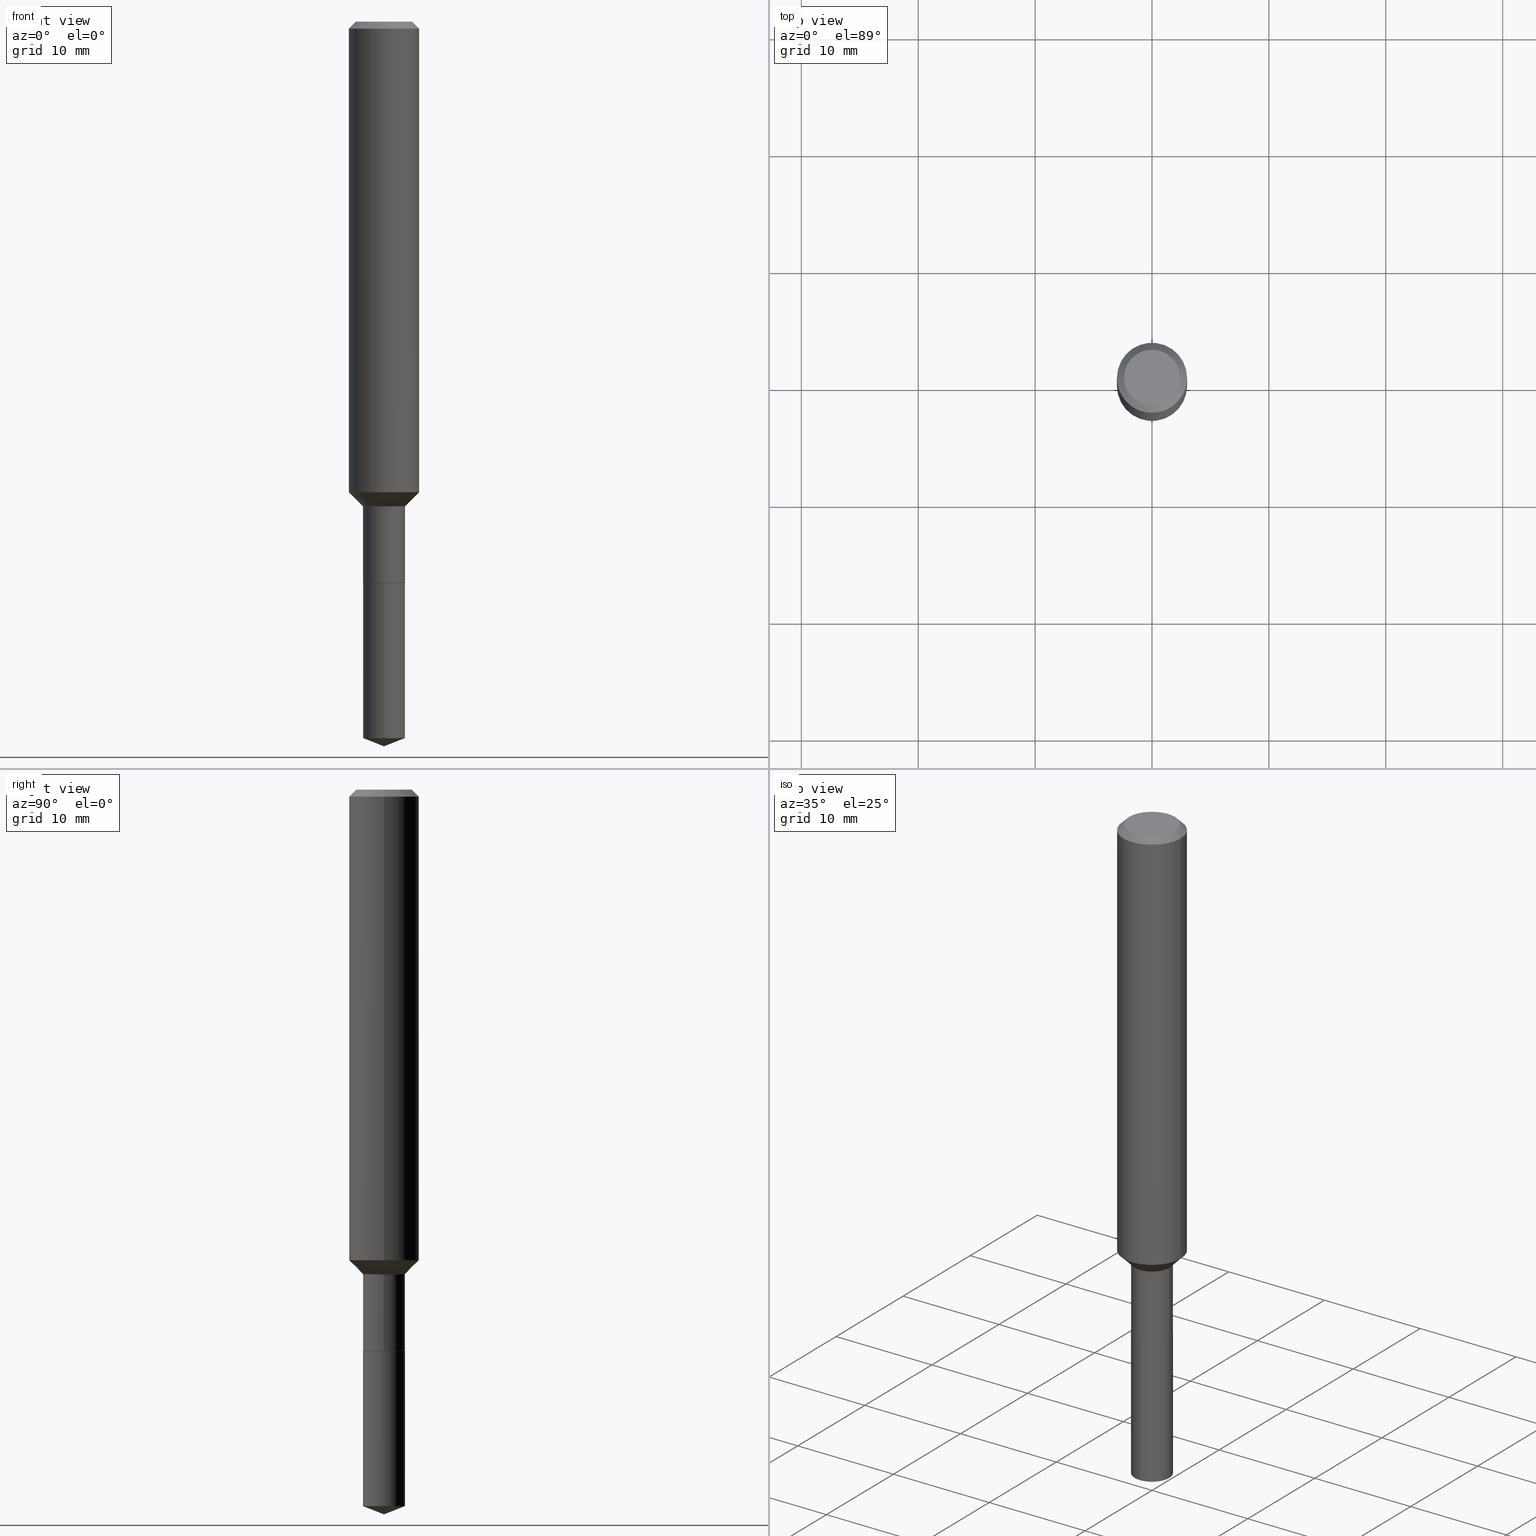
[diagram: canonical four-view strip — front | top / right | iso, engineering-drawing reading convention]
A machine part, canonical four-view strip (front | top / right | iso — engineering-drawing reading convention). The complete STEP part file that produces these views, byte-faithful:
ISO-10303-21;
HEADER;
FILE_DESCRIPTION (( 'STEP AP203' ),
    '1' );
FILE_NAME ('66406.STEP',
    '2024-04-24T22:15:12',
    ( '' ),
    ( '' ),
    'SwSTEP 2.0',
    'SolidWorks 2023',
    '' );
FILE_SCHEMA (( 'CONFIG_CONTROL_DESIGN' ));
ENDSEC;

DATA;
#1 = VERTEX_POINT ( 'NONE', #247 ) ;
#2 = CC_DESIGN_DATE_AND_TIME_ASSIGNMENT ( #76, #382, ( #127 ) ) ;
#3 = CARTESIAN_POINT ( 'NONE',  ( 5.776197320209327532E-31, -8.246878922347559293E-17, -0.02362000000000014088 ) ) ;
#4 = VERTEX_POINT ( 'NONE', #164 ) ;
#5 = CARTESIAN_POINT ( 'NONE',  ( 5.943564290953905470E-29, -8.558989557801686786E-15, -2.440900000000000070 ) ) ;
#6 = ORIENTED_EDGE ( 'NONE', *, *, #57, .T. ) ;
#7 = AXIS2_PLACEMENT_3D ( 'NONE', #369, #305, #172 ) ;
#8 = PERSON_AND_ORGANIZATION ( #216, #340 ) ;
#9 = CONICAL_SURFACE ( 'NONE', #174, 0.1180999999999999966, 0.7853981633974460586 ) ;
#10 = CARTESIAN_POINT ( 'NONE',  ( -0.07084999999999999631, -5.644031665015095667E-15, -1.889200000000000212 ) ) ;
#11 = CARTESIAN_POINT ( 'NONE',  ( 4.621202403048053204E-29, -6.597852286011892490E-15, -1.889700000000000157 ) ) ;
#12 = CARTESIAN_POINT ( 'NONE',  ( 4.621202403048053204E-29, -6.597852286011893278E-15, -1.889700000000000379 ) ) ;
#13 = ORIENTED_EDGE ( 'NONE', *, *, #131, .T. ) ;
#14 = DIRECTION ( 'NONE',  ( 0.7071067811865480168, -2.468850131082262583E-15, 0.7071067811865469066 ) ) ;
#15 = CYLINDRICAL_SURFACE ( 'NONE', #417, 0.07084999999999999631 ) ;
#16 = AXIS2_PLACEMENT_3D ( 'NONE', #438, #63, #409 ) ;
#17 = CONICAL_SURFACE ( 'NONE', #319, 99.94676754583976219, 1.195550537616118847 ) ;
#18 = ORIENTED_EDGE ( 'NONE', *, *, #101, .T. ) ;
#19 = EDGE_CURVE ( 'NONE', #117, #277, #128, .T. ) ;
#20 = DIRECTION ( 'NONE',  ( 2.445468806185136597E-29, -3.491481338843145583E-15, -1.000000000000000000 ) ) ;
#21 = DIRECTION ( 'NONE',  ( -2.445468806185136597E-29, 3.491481338843145583E-15, 1.000000000000000000 ) ) ;
#22 = EDGE_CURVE ( 'NONE', #213, #399, #412, .T. ) ;
#23 = APPLICATION_CONTEXT ( 'configuration controlled 3d designs of mechanical parts and assemblies' ) ;
#24 = CARTESIAN_POINT ( 'NONE',  ( 0.07034999999999999587, -7.089103710387122527E-15, -1.889700000000000379 ) ) ;
#25 = AXIS2_PLACEMENT_3D ( 'NONE', #215, #170, #136 ) ;
#26 = CARTESIAN_POINT ( 'NONE',  ( 0.1180999999999999966, -8.926936027602933910E-16, -0.02362000000000014088 ) ) ;
#27 = DIRECTION ( 'NONE',  ( 1.000000000000000000, -6.982962677686266711E-15, 4.876176775795935232E-29 ) ) ;
#28 = APPROVAL ( #272, 'UNSPECIFIED' ) ;
#29 = CARTESIAN_POINT ( 'NONE',  ( -0.1180999999999999966, 7.422191030112725094E-16, -0.02362000000000014088 ) ) ;
#30 = MECHANICAL_CONTEXT ( 'NONE', #23, 'mechanical' ) ;
#31 = LINE ( 'NONE', #24, #120 ) ;
#32 = CARTESIAN_POINT ( 'NONE',  ( 0.000000000000000000, 0.000000000000000000, 0.000000000000000000 ) ) ;
#33 = ADVANCED_FACE ( 'NONE', ( #203 ), #15, .T. ) ;
#34 = CALENDAR_DATE ( 2024, 24, 4 ) ;
#35 = UNCERTAINTY_MEASURE_WITH_UNIT (LENGTH_MEASURE( 1.000000000000000082E-05 ), #485, 'distance_accuracy_value', 'NONE');
#36 = ORIENTED_EDGE ( 'NONE', *, *, #264, .F. ) ;
#37 = PERSON_AND_ORGANIZATION ( #216, #340 ) ;
#38 = ADVANCED_FACE ( 'NONE', ( #394 ), #327, .T. ) ;
#39 = VERTEX_POINT ( 'NONE', #93 ) ;
#40 = EDGE_CURVE ( 'NONE', #320, #455, #396, .T. ) ;
#41 = CIRCLE ( 'NONE', #435, 0.1180999999999999966 ) ;
#42 = ORIENTED_EDGE ( 'NONE', *, *, #40, .T. ) ;
#43 = CONICAL_SURFACE ( 'NONE', #228, 0.1180999999999999966, 0.7853981633974460586 ) ;
#44 = FACE_OUTER_BOUND ( 'NONE', #271, .T. ) ;
#45 = COORDINATED_UNIVERSAL_TIME_OFFSET ( 5, 0, .BEHIND. ) ;
#46 = CARTESIAN_POINT ( 'NONE',  ( 2.358133508849003952E-46, -3.366789680499277518E-32, -9.642868896486260050E-18 ) ) ;
#47 = ORIENTED_EDGE ( 'NONE', *, *, #106, .T. ) ;
#48 = COORDINATED_UNIVERSAL_TIME_OFFSET ( 5, 0, .BEHIND. ) ;
#49 = FACE_OUTER_BOUND ( 'NONE', #313, .T. ) ;
#50 = DIRECTION ( 'NONE',  ( -2.445468806185136597E-29, 3.491481338843145583E-15, 1.000000000000000000 ) ) ;
#51 = AXIS2_PLACEMENT_3D ( 'NONE', #32, #481, #141 ) ;
#52 = CC_DESIGN_APPROVAL ( #28, ( #127 ) ) ;
#53 = CYLINDRICAL_SURFACE ( 'NONE', #166, 0.07084999999999998244 ) ;
#54 = VERTEX_POINT ( 'NONE', #302 ) ;
#55 = CARTESIAN_POINT ( 'NONE',  ( -0.07084999999999995468, -5.195376312973751895E-15, -1.632200000000000095 ) ) ;
#56 = ORIENTED_EDGE ( 'NONE', *, *, #179, .F. ) ;
#57 = EDGE_CURVE ( 'NONE', #455, #97, #348, .T. ) ;
#58 = EDGE_LOOP ( 'NONE', ( #416, #347, #469, #158 ) ) ;
#59 = AXIS2_PLACEMENT_3D ( 'NONE', #337, #297, #138 ) ;
#60 = ORIENTED_EDGE ( 'NONE', *, *, #109, .T. ) ;
#61 = LINE ( 'NONE', #226, #303 ) ;
#62 = DIRECTION ( 'NONE',  ( -2.445468806185136597E-29, 3.491481338843145583E-15, 1.000000000000000000 ) ) ;
#63 = DIRECTION ( 'NONE',  ( -2.434988852863249163E-29, 3.506489228481988303E-15, 1.000000000000000000 ) ) ;
#64 = EDGE_CURVE ( 'NONE', #1, #367, #202, .T. ) ;
#65 = AXIS2_PLACEMENT_3D ( 'NONE', #356, #83, #242 ) ;
#66 = AXIS2_PLACEMENT_3D ( 'NONE', #225, #182, #448 ) ;
#67 = CARTESIAN_POINT ( 'NONE',  ( 0.1181000000000001077, -8.246878922347488542E-16, 5.758764772215005345E-30 ) ) ;
#68 =( NAMED_UNIT ( * ) SI_UNIT ( $, .STERADIAN. ) SOLID_ANGLE_UNIT ( ) );
#69 = DIRECTION ( 'NONE',  ( -2.434988852863248882E-29, 3.506489228481988303E-15, 1.000000000000000000 ) ) ;
#70 = PERSON_AND_ORGANIZATION ( #216, #340 ) ;
#71 = DIRECTION ( 'NONE',  ( -2.434988852863249163E-29, 3.506489228481988303E-15, 1.000000000000000000 ) ) ;
#72 = PERSON_AND_ORGANIZATION_ROLE ( 'creator' ) ;
#73 = CONICAL_SURFACE ( 'NONE', #65, 0.07034999999999999587, 0.7853981633972689780 ) ;
#74 = DIRECTION ( 'NONE',  ( -1.000000000000000000, 6.982962677686266711E-15, 0.000000000000000000 ) ) ;
#75 = AXIS2_PLACEMENT_3D ( 'NONE', #46, #197, #353 ) ;
#76 = DATE_AND_TIME ( #34, #444 ) ;
#77 = DESIGN_CONTEXT ( 'detailed design', #355, 'design' ) ;
#78 = EDGE_LOOP ( 'NONE', ( #152, #465, #42, #460 ) ) ;
#79 = SHAPE_DEFINITION_REPRESENTATION ( #293, #446 ) ;
#80 = ORIENTED_EDGE ( 'NONE', *, *, #90, .T. ) ;
#81 = AXIS2_PLACEMENT_3D ( 'NONE', #257, #439, #400 ) ;
#82 = APPROVAL_DATE_TIME ( #244, #115 ) ;
#83 = DIRECTION ( 'NONE',  ( -2.445468806185136597E-29, 3.491481338843145583E-15, 1.000000000000000000 ) ) ;
#84 = ORIENTED_EDGE ( 'NONE', *, *, #200, .F. ) ;
#85 = CARTESIAN_POINT ( 'NONE',  ( -0.1181000000000001077, 8.391509709326790846E-16, -5.809262341591049389E-30 ) ) ;
#86 = ORIENTED_EDGE ( 'NONE', *, *, #171, .T. ) ;
#87 = EDGE_CURVE ( 'NONE', #213, #117, #31, .T. ) ;
#88 = CARTESIAN_POINT ( 'NONE',  ( -5.029850966064446794E-30, -1.393598043615739189E-14, -1.889700000000000379 ) ) ;
#89 = DIRECTION ( 'NONE',  ( 1.000000000000000000, -6.982962677686269866E-15, 0.000000000000000000 ) ) ;
#90 = EDGE_CURVE ( 'NONE', #472, #208, #461, .T. ) ;
#91 = AXIS2_PLACEMENT_3D ( 'NONE', #282, #360, #162 ) ;
#92 = DIRECTION ( 'NONE',  ( -6.982962677686267499E-15, -1.000000000000000000, 3.498627837350011717E-15 ) ) ;
#93 = CARTESIAN_POINT ( 'NONE',  ( 0.09447999999999998066, -7.704367267948738690E-16, -1.928573779296752193E-17 ) ) ;
#94 = CC_DESIGN_DATE_AND_TIME_ASSIGNMENT ( #351, #391, ( #326 ) ) ;
#95 = EDGE_LOOP ( 'NONE', ( #195, #420, #241 ) ) ;
#96 = PRODUCT ( '66406', '66406', '', ( #30 ) ) ;
#97 = VERTEX_POINT ( 'NONE', #267 ) ;
#98 = CLOSED_SHELL ( 'NONE', ( #470, #414, #142, #279, #240, #474, #254, #187, #377, #384, #214, #196 ) ) ;
#99 = DIRECTION ( 'NONE',  ( 1.000000000000000000, -6.982962677686269077E-15, 0.000000000000000000 ) ) ;
#100 = CARTESIAN_POINT ( 'NONE',  ( -4.947429057140257124E-16, -0.07085000000000658826, -1.889699999999999713 ) ) ;
#101 = EDGE_CURVE ( 'NONE', #277, #367, #260, .T. ) ;
#102 = CARTESIAN_POINT ( 'NONE',  ( 3.875945784363132517E-29, -5.533823347999443072E-15, -1.584950000000000081 ) ) ;
#103 = CC_DESIGN_APPROVAL ( #115, ( #326 ) ) ;
#104 = LINE ( 'NONE', #107, #386 ) ;
#105 = DIRECTION ( 'NONE',  ( 1.000000000000000000, 0.000000000000000000, 0.000000000000000000 ) ) ;
#106 = EDGE_CURVE ( 'NONE', #97, #455, #476, .T. ) ;
#107 = CARTESIAN_POINT ( 'NONE',  ( 5.983519541380308679E-29, -8.502268739700643296E-15, -2.440900000000000070 ) ) ;
#108 = CALENDAR_DATE ( 2024, 24, 4 ) ;
#109 = EDGE_CURVE ( 'NONE', #208, #472, #211, .T. ) ;
#110 = CARTESIAN_POINT ( 'NONE',  ( -0.07034999999999999587, -6.097985471404663419E-15, -1.889700000000000379 ) ) ;
#111 =( NAMED_UNIT ( * ) PLANE_ANGLE_UNIT ( ) SI_UNIT ( $, .RADIAN. ) );
#112 = LOCAL_TIME ( 18, 15, 12.00000000000000000, #48 ) ;
#113 = VERTEX_POINT ( 'NONE', #219 ) ;
#114 = PERSON_AND_ORGANIZATION ( #216, #340 ) ;
#115 = APPROVAL ( #116, 'UNSPECIFIED' ) ;
#116 = APPROVAL_STATUS ( 'not_yet_approved' ) ;
#117 = VERTEX_POINT ( 'NONE', #447 ) ;
#118 = CALENDAR_DATE ( 2024, 24, 4 ) ;
#119 = DIRECTION ( 'NONE',  ( -0.7071067811865480168, 7.493145998870355738E-15, 0.7071067811865469066 ) ) ;
#120 = VECTOR ( 'NONE', #339, 39.37007874015748854 ) ;
#121 = FACE_OUTER_BOUND ( 'NONE', #237, .T. ) ;
#122 = ORIENTED_EDGE ( 'NONE', *, *, #307, .F. ) ;
#123 = DIRECTION ( 'NONE',  ( -0.7071067811864205632, 7.493145998869895043E-15, 0.7071067811866742492 ) ) ;
#124 = ORIENTED_EDGE ( 'NONE', *, *, #464, .T. ) ;
#125 = DIRECTION ( 'NONE',  ( -2.434988852863249163E-29, 3.506489228481988303E-15, 1.000000000000000000 ) ) ;
#126 = ORIENTED_EDGE ( 'NONE', *, *, #22, .T. ) ;
#127 = PRODUCT_DEFINITION ( 'UNKNOWN', '', #333, #77 ) ;
#128 = CIRCLE ( 'NONE', #261, 0.07084999999999998244 ) ;
#129 =( GEOMETRIC_REPRESENTATION_CONTEXT ( 3 ) GLOBAL_UNCERTAINTY_ASSIGNED_CONTEXT ( ( #35 ) ) GLOBAL_UNIT_ASSIGNED_CONTEXT ( ( #485, #111, #68 ) ) REPRESENTATION_CONTEXT ( 'NONE', 'WORKASPACE' ) );
#130 = ORIENTED_EDGE ( 'NONE', *, *, #422, .T. ) ;
#131 = EDGE_CURVE ( 'NONE', #39, #113, #144, .T. ) ;
#132 = ORIENTED_EDGE ( 'NONE', *, *, #57, .F. ) ;
#133 = FACE_OUTER_BOUND ( 'NONE', #488, .T. ) ;
#134 = DIRECTION ( 'NONE',  ( -2.445468806185136597E-29, 3.491481338843145583E-15, 1.000000000000000000 ) ) ;
#135 = CIRCLE ( 'NONE', #332, 0.07034999999999999587 ) ;
#136 = DIRECTION ( 'NONE',  ( 1.000000000000000000, -6.982962677686267499E-15, 4.875432709231658792E-29 ) ) ;
#137 = EDGE_CURVE ( 'NONE', #54, #113, #41, .T. ) ;
#138 = DIRECTION ( 'NONE',  ( -6.982962677686265133E-15, -1.000000000000000000, 3.855819327684210983E-15 ) ) ;
#139 = DIRECTION ( 'NONE',  ( -6.982962677686266711E-15, -1.000000000000000000, 3.855819327684210983E-15 ) ) ;
#140 = DIRECTION ( 'NONE',  ( 1.000000000000000000, -6.982962677686269077E-15, 0.000000000000000000 ) ) ;
#141 = DIRECTION ( 'NONE',  ( 1.000000000000000000, -6.982962677686266711E-15, 4.876176775795935793E-29 ) ) ;
#142 = ADVANCED_FACE ( 'NONE', ( #436 ), #404, .T. ) ;
#143 = AXIS2_PLACEMENT_3D ( 'NONE', #102, #371, #140 ) ;
#144 = LINE ( 'NONE', #26, #483 ) ;
#145 = CARTESIAN_POINT ( 'NONE',  ( 5.776197320209327532E-31, -8.246878922347559293E-17, -0.02362000000000014088 ) ) ;
#146 = EDGE_LOOP ( 'NONE', ( #151, #18, #456, #84 ) ) ;
#147 = CALENDAR_DATE ( 2024, 24, 4 ) ;
#148 = VECTOR ( 'NONE', #69, 39.37007874015748143 ) ;
#149 = ADVANCED_FACE ( 'NONE', ( #258 ), #190, .T. ) ;
#150 = CIRCLE ( 'NONE', #25, 0.09447999999999998066 ) ;
#151 = ORIENTED_EDGE ( 'NONE', *, *, #19, .T. ) ;
#152 = ORIENTED_EDGE ( 'NONE', *, *, #175, .F. ) ;
#153 = DIRECTION ( 'NONE',  ( -6.497071151882118258E-15, -0.9304175679820243516, 0.3665012267242976907 ) ) ;
#154 = ORIENTED_EDGE ( 'NONE', *, *, #137, .T. ) ;
#155 = CC_DESIGN_PERSON_AND_ORGANIZATION_ASSIGNMENT ( #70, #338, ( #96 ) ) ;
#156 = DIRECTION ( 'NONE',  ( 1.000000000000000000, -6.982962677686266711E-15, 0.000000000000000000 ) ) ;
#157 = CLOSED_SHELL ( 'NONE', ( #38, #335, #149, #33, #419 ) ) ;
#158 = ORIENTED_EDGE ( 'NONE', *, *, #445, .F. ) ;
#159 = LOCAL_TIME ( 18, 15, 12.00000000000000000, #489 ) ;
#160 = DIRECTION ( 'NONE',  ( 1.000000000000000000, -6.982962677686267499E-15, 0.000000000000000000 ) ) ;
#161 = EDGE_LOOP ( 'NONE', ( #124, #275, #132, #359 ) ) ;
#162 = DIRECTION ( 'NONE',  ( 1.000000000000000000, -6.982962677686267499E-15, 0.000000000000000000 ) ) ;
#163 = CARTESIAN_POINT ( 'NONE',  ( 4.621202403048053204E-29, -6.597852286011892490E-15, -1.889700000000000157 ) ) ;
#164 = CARTESIAN_POINT ( 'NONE',  ( -0.09447999999999998066, 7.009847083995354710E-16, -1.928573779297727792E-17 ) ) ;
#165 = EDGE_CURVE ( 'NONE', #472, #113, #440, .T. ) ;
#166 = AXIS2_PLACEMENT_3D ( 'NONE', #486, #278, #352 ) ;
#167 = CIRCLE ( 'NONE', #66, 0.07084999999999998244 ) ;
#168 = ORIENTED_EDGE ( 'NONE', *, *, #249, .T. ) ;
#169 = VERTEX_POINT ( 'NONE', #222 ) ;
#170 = DIRECTION ( 'NONE',  ( -2.445468806185136597E-29, 3.491481338843145583E-15, 1.000000000000000000 ) ) ;
#171 = EDGE_CURVE ( 'NONE', #4, #54, #373, .T. ) ;
#172 = DIRECTION ( 'NONE',  ( 1.000000000000000000, -6.982962677686267499E-15, 4.875432709231658792E-29 ) ) ;
#173 = CARTESIAN_POINT ( 'NONE',  ( 5.895411233071309242E-29, -8.432768093556294128E-15, -2.412991442802681963 ) ) ;
#174 = AXIS2_PLACEMENT_3D ( 'NONE', #253, #20, #329 ) ;
#175 = EDGE_CURVE ( 'NONE', #169, #97, #61, .T. ) ;
#176 = DIRECTION ( 'NONE',  ( -2.445468806185136597E-29, 3.491481338843145583E-15, 1.000000000000000000 ) ) ;
#177 =( LENGTH_UNIT ( ) NAMED_UNIT ( * ) SI_UNIT ( $, .METRE. ) );
#178 = FACE_OUTER_BOUND ( 'NONE', #361, .T. ) ;
#179 = EDGE_CURVE ( 'NONE', #39, #4, #325, .T. ) ;
#180 = CARTESIAN_POINT ( 'NONE',  ( 5.776197320209327532E-31, -8.246878922347559293E-17, -0.02362000000000014088 ) ) ;
#181 = EDGE_CURVE ( 'NONE', #233, #169, #104, .T. ) ;
#182 = DIRECTION ( 'NONE',  ( -2.445468806185136597E-29, 3.491481338843145583E-15, 1.000000000000000000 ) ) ;
#183 = CARTESIAN_POINT ( 'NONE',  ( 0.000000000000000000, 0.000000000000000000, 0.000000000000000000 ) ) ;
#184 = APPROVAL_DATE_TIME ( #268, #28 ) ;
#185 = ORIENTED_EDGE ( 'NONE', *, *, #344, .F. ) ;
#186 = APPROVAL_STATUS ( 'not_yet_approved' ) ;
#187 = ADVANCED_FACE ( 'NONE', ( #178 ), #376, .T. ) ;
#188 = ORIENTED_EDGE ( 'NONE', *, *, #231, .T. ) ;
#189 = SECURITY_CLASSIFICATION_LEVEL ( 'unclassified' ) ;
#190 = CONICAL_SURFACE ( 'NONE', #220, 99.94676754583976219, 1.195550537616118847 ) ;
#191 = AXIS2_PLACEMENT_3D ( 'NONE', #375, #299, #99 ) ;
#192 = LOCAL_TIME ( 18, 15, 12.00000000000000000, #266 ) ;
#193 = ORIENTED_EDGE ( 'NONE', *, *, #165, .F. ) ;
#194 = CARTESIAN_POINT ( 'NONE',  ( 0.07034999999999999587, -7.089103710387122527E-15, -1.889700000000000379 ) ) ;
#195 = ORIENTED_EDGE ( 'NONE', *, *, #181, .F. ) ;
#196 = ADVANCED_FACE ( 'NONE', ( #408 ), #73, .T. ) ;
#197 = DIRECTION ( 'NONE',  ( 2.438088387897960049E-29, -3.491481338843145188E-15, -1.000000000000000000 ) ) ;
#198 = ORIENTED_EDGE ( 'NONE', *, *, #304, .T. ) ;
#199 = MANIFOLD_SOLID_BREP ( 'Body-Move/Copy2[1]', #157 ) ;
#200 = EDGE_CURVE ( 'NONE', #117, #1, #425, .T. ) ;
#201 = LINE ( 'NONE', #463, #452 ) ;
#202 = CIRCLE ( 'NONE', #235, 0.07084999999999995468 ) ;
#203 = FACE_OUTER_BOUND ( 'NONE', #78, .T. ) ;
#204 = PERSON_AND_ORGANIZATION_ROLE ( 'classification_officer' ) ;
#205 = DIRECTION ( 'NONE',  ( -2.445468806185136597E-29, 3.491481338843145583E-15, 1.000000000000000000 ) ) ;
#206 = ORIENTED_EDGE ( 'NONE', *, *, #109, .F. ) ;
#207 = CC_DESIGN_PERSON_AND_ORGANIZATION_ASSIGNMENT ( #424, #204, ( #326 ) ) ;
#208 = VERTEX_POINT ( 'NONE', #285 ) ;
#209 = CARTESIAN_POINT ( 'NONE',  ( -0.07034999999999999587, -6.095336244230551429E-15, -1.889700000000000379 ) ) ;
#210 = EDGE_LOOP ( 'NONE', ( #36, #330, #433 ) ) ;
#211 = CIRCLE ( 'NONE', #191, 0.1181000000000001909 ) ;
#212 = APPROVAL_PERSON_ORGANIZATION ( #8, #115, #314 ) ;
#213 = VERTEX_POINT ( 'NONE', #194 ) ;
#214 = ADVANCED_FACE ( 'NONE', ( #121 ), #239, .F. ) ;
#215 = CARTESIAN_POINT ( 'NONE',  ( 4.716267017698007905E-46, -6.733579360998555036E-32, -1.928573779297252010E-17 ) ) ;
#216 = PERSON ( 'UNSPECIFIED', 'UNSPECIFIED', 'UNSPECIFIED', ('UNSPECIFIED'), ('UNSPECIFIED'), ('UNSPECIFIED') ) ;
#217 = DIRECTION ( 'NONE',  ( -2.434988852863248882E-29, 3.506489228481988303E-15, 1.000000000000000000 ) ) ;
#218 = DIRECTION ( 'NONE',  ( 1.000000000000000000, -6.982962677686267499E-15, 0.000000000000000000 ) ) ;
#219 = CARTESIAN_POINT ( 'NONE',  ( 0.1180999999999999966, -9.071566814582237199E-16, -0.02362000000000014088 ) ) ;
#220 = AXIS2_PLACEMENT_3D ( 'NONE', #294, #71, #479 ) ;
#221 = DIRECTION ( 'NONE',  ( 1.000000000000000000, -6.982962677686269866E-15, 0.000000000000000000 ) ) ;
#222 = CARTESIAN_POINT ( 'NONE',  ( 5.034195282860899229E-16, 0.07084999999999157250, -2.412991442802681963 ) ) ;
#223 = FACE_OUTER_BOUND ( 'NONE', #58, .T. ) ;
#224 = CARTESIAN_POINT ( 'NONE',  ( -0.07084999999999998244, 5.034195282860308569E-16, -3.485065511445599567E-30 ) ) ;
#225 = CARTESIAN_POINT ( 'NONE',  ( 4.619979668644960403E-29, -6.596106545342470986E-15, -1.889200000000000212 ) ) ;
#226 = CARTESIAN_POINT ( 'NONE',  ( 5.034195282860771039E-16, 0.07084999999999339049, -1.889700000000000379 ) ) ;
#227 = CARTESIAN_POINT ( 'NONE',  ( 0.000000000000000000, 0.000000000000000000, 0.000000000000000000 ) ) ;
#228 = AXIS2_PLACEMENT_3D ( 'NONE', #145, #411, #74 ) ;
#229 = DIRECTION ( 'NONE',  ( -2.438088387897960049E-29, 3.491481338843145188E-15, 1.000000000000000000 ) ) ;
#230 = ORIENTED_EDGE ( 'NONE', *, *, #445, .T. ) ;
#231 = EDGE_CURVE ( 'NONE', #399, #213, #135, .T. ) ;
#232 = CYLINDRICAL_SURFACE ( 'NONE', #365, 0.07084999999999998244 ) ;
#233 = VERTEX_POINT ( 'NONE', #5 ) ;
#234 = ORIENTED_EDGE ( 'NONE', *, *, #307, .T. ) ;
#235 = AXIS2_PLACEMENT_3D ( 'NONE', #443, #403, #478 ) ;
#236 = CC_DESIGN_APPROVAL ( #458, ( #333 ) ) ;
#237 = EDGE_LOOP ( 'NONE', ( #251, #317 ) ) ;
#238 = PERSON_AND_ORGANIZATION_ROLE ( 'design_supplier' ) ;
#239 = PLANE ( 'NONE',  #357 ) ;
#240 = ADVANCED_FACE ( 'NONE', ( #392 ), #53, .T. ) ;
#241 = ORIENTED_EDGE ( 'NONE', *, *, #291, .F. ) ;
#242 = DIRECTION ( 'NONE',  ( 1.000000000000000000, -6.982962677686269866E-15, 0.000000000000000000 ) ) ;
#243 = ORIENTED_EDGE ( 'NONE', *, *, #249, .F. ) ;
#244 = DATE_AND_TIME ( #118, #248 ) ;
#245 = DIRECTION ( 'NONE',  ( 1.000000000000000000, -6.982962677686265922E-15, 4.876176775795935793E-29 ) ) ;
#246 = CONICAL_SURFACE ( 'NONE', #91, 0.07084999999999995468, 0.7853981633974490562 ) ;
#247 = CARTESIAN_POINT ( 'NONE',  ( 0.07084999999999995468, -6.193538746973854908E-15, -1.632200000000000095 ) ) ;
#248 = LOCAL_TIME ( 18, 15, 12.00000000000000000, #45 ) ;
#249 = EDGE_CURVE ( 'NONE', #113, #54, #393, .T. ) ;
#250 = LINE ( 'NONE', #55, #387 ) ;
#251 = ORIENTED_EDGE ( 'NONE', *, *, #22, .F. ) ;
#252 = EDGE_LOOP ( 'NONE', ( #122, #188, #383, #328 ) ) ;
#253 = CARTESIAN_POINT ( 'NONE',  ( 5.776197320209327532E-31, -8.246878922347559293E-17, -0.02362000000000014088 ) ) ;
#254 = ADVANCED_FACE ( 'NONE', ( #49 ), #246, .T. ) ;
#255 = CARTESIAN_POINT ( 'NONE',  ( 4.619979668644960403E-29, -6.596106545342470986E-15, -1.889200000000000212 ) ) ;
#256 = VECTOR ( 'NONE', #484, 39.37007874015748143 ) ;
#257 = CARTESIAN_POINT ( 'NONE',  ( 4.621202403048053204E-29, -6.597852286011892490E-15, -1.889700000000000157 ) ) ;
#258 = FACE_OUTER_BOUND ( 'NONE', #95, .T. ) ;
#259 = DIRECTION ( 'NONE',  ( -2.445468806185136877E-29, 3.491481338843145188E-15, 1.000000000000000000 ) ) ;
#260 = LINE ( 'NONE', #224, #428 ) ;
#261 = AXIS2_PLACEMENT_3D ( 'NONE', #255, #21, #467 ) ;
#262 = VECTOR ( 'NONE', #321, 39.37007874015748143 ) ;
#263 = APPROVAL_ROLE ( '' ) ;
#264 = EDGE_CURVE ( 'NONE', #233, #320, #201, .T. ) ;
#265 = DIRECTION ( 'NONE',  ( 6.611014441532064222E-15, 0.9304175679820269051, 0.3665012267242910848 ) ) ;
#266 = COORDINATED_UNIVERSAL_TIME_OFFSET ( 5, 0, .BEHIND. ) ;
#267 = CARTESIAN_POINT ( 'NONE',  ( 5.034195282860899229E-16, 0.07084999999999339049, -1.889700000000000379 ) ) ;
#268 = DATE_AND_TIME ( #108, #192 ) ;
#269 = FACE_OUTER_BOUND ( 'NONE', #286, .T. ) ;
#270 = CC_DESIGN_PERSON_AND_ORGANIZATION_ASSIGNMENT ( #410, #72, ( #127 ) ) ;
#271 = EDGE_LOOP ( 'NONE', ( #130, #292 ) ) ;
#272 = APPROVAL_STATUS ( 'not_yet_approved' ) ;
#273 = VECTOR ( 'NONE', #401, 39.37007874015748143 ) ;
#274 = AXIS2_PLACEMENT_3D ( 'NONE', #407, #306, #105 ) ;
#275 = ORIENTED_EDGE ( 'NONE', *, *, #175, .T. ) ;
#276 = PERSON_AND_ORGANIZATION_ROLE ( 'creator' ) ;
#277 = VERTEX_POINT ( 'NONE', #10 ) ;
#278 = DIRECTION ( 'NONE',  ( -2.445468806185136597E-29, 3.491481338843145583E-15, 1.000000000000000000 ) ) ;
#279 = ADVANCED_FACE ( 'NONE', ( #421 ), #406, .T. ) ;
#280 = AXIS2_PLACEMENT_3D ( 'NONE', #3, #205, #156 ) ;
#281 = EDGE_LOOP ( 'NONE', ( #80, #198, #243, #193 ) ) ;
#282 = CARTESIAN_POINT ( 'NONE',  ( 3.991494185455380396E-29, -5.698795841259782653E-15, -1.632200000000000095 ) ) ;
#283 = ORIENTED_EDGE ( 'NONE', *, *, #441, .F. ) ;
#284 = PERSON_AND_ORGANIZATION ( #216, #340 ) ;
#285 = CARTESIAN_POINT ( 'NONE',  ( -0.1181000000000002048, -4.694672377066764086E-15, -1.584950000000000081 ) ) ;
#286 = EDGE_LOOP ( 'NONE', ( #381, #431, #86, #154 ) ) ;
#287 = CARTESIAN_POINT ( 'NONE',  ( -4.947429057140129920E-16, -0.07085000000000843401, -2.412991442802681519 ) ) ;
#288 = DIRECTION ( 'NONE',  ( -2.434988852863249163E-29, 3.506489228481988303E-15, 1.000000000000000000 ) ) ;
#289 = AXIS2_PLACEMENT_3D ( 'NONE', #402, #62, #218 ) ;
#290 = ORIENTED_EDGE ( 'NONE', *, *, #19, .F. ) ;
#291 = EDGE_CURVE ( 'NONE', #169, #320, #429, .T. ) ;
#292 = ORIENTED_EDGE ( 'NONE', *, *, #179, .T. ) ;
#293 = PRODUCT_DEFINITION_SHAPE ( 'NONE', 'NONE',  #127 ) ;
#294 = CARTESIAN_POINT ( 'NONE',  ( -8.990233460988559297E-28, 1.295201278780987653E-13, 36.92917874015748225 ) ) ;
#295 = VECTOR ( 'NONE', #389, 39.37007874015748143 ) ;
#296 = CIRCLE ( 'NONE', #289, 0.07084999999999995468 ) ;
#297 = DIRECTION ( 'NONE',  ( -2.434988852863249163E-29, 3.506489228481988303E-15, 1.000000000000000000 ) ) ;
#298 = FACE_OUTER_BOUND ( 'NONE', #415, .T. ) ;
#299 = DIRECTION ( 'NONE',  ( -2.445468806185136597E-29, 3.491481338843145583E-15, 1.000000000000000000 ) ) ;
#300 = CC_DESIGN_PERSON_AND_ORGANIZATION_ASSIGNMENT ( #284, #238, ( #333 ) ) ;
#301 = APPLICATION_PROTOCOL_DEFINITION ( 'international standard', 'config_control_design', 1994, #355 ) ;
#302 = CARTESIAN_POINT ( 'NONE',  ( -0.1180999999999999966, -1.968995097678779884E-15, -0.02362000000000014088 ) ) ;
#303 = VECTOR ( 'NONE', #217, 39.37007874015748143 ) ;
#304 = EDGE_CURVE ( 'NONE', #208, #54, #316, .T. ) ;
#305 = DIRECTION ( 'NONE',  ( -2.445468806185136597E-29, 3.491481338843145583E-15, 1.000000000000000000 ) ) ;
#306 = DIRECTION ( 'NONE',  ( 0.000000000000000000, 0.000000000000000000, 1.000000000000000000 ) ) ;
#307 = EDGE_CURVE ( 'NONE', #399, #277, #418, .T. ) ;
#308 = DIRECTION ( 'NONE',  ( -2.445468806185136597E-29, 3.491481338843145583E-15, 1.000000000000000000 ) ) ;
#309 = DATE_AND_TIME ( #147, #159 ) ;
#310 = AXIS2_PLACEMENT_3D ( 'NONE', #183, #176, #336 ) ;
#311 = CONICAL_SURFACE ( 'NONE', #477, 0.07034999999999999587, 0.7853981633972689780 ) ;
#312 = ORIENTED_EDGE ( 'NONE', *, *, #165, .T. ) ;
#313 = EDGE_LOOP ( 'NONE', ( #185, #230, #350, #206 ) ) ;
#314 = APPROVAL_ROLE ( '' ) ;
#315 = DIMENSIONAL_EXPONENTS ( 1.000000000000000000, 0.000000000000000000, 0.000000000000000000, 0.000000000000000000, 0.000000000000000000, 0.000000000000000000, 0.000000000000000000 ) ;
#316 = LINE ( 'NONE', #85, #262 ) ;
#317 = ORIENTED_EDGE ( 'NONE', *, *, #231, .F. ) ;
#318 = DIRECTION ( 'NONE',  ( -2.445468806185136597E-29, 3.491481338843145583E-15, 1.000000000000000000 ) ) ;
#319 = AXIS2_PLACEMENT_3D ( 'NONE', #459, #395, #92 ) ;
#320 = VERTEX_POINT ( 'NONE', #287 ) ;
#321 = DIRECTION ( 'NONE',  ( -2.445468806185136877E-29, 3.491481338843145188E-15, 1.000000000000000000 ) ) ;
#322 = DIRECTION ( 'NONE',  ( -2.434988852863249163E-29, 3.506489228481988303E-15, 1.000000000000000000 ) ) ;
#323 = DIRECTION ( 'NONE',  ( 1.000000000000000000, -6.982962677686269866E-15, 0.000000000000000000 ) ) ;
#324 = ORIENTED_EDGE ( 'NONE', *, *, #137, .F. ) ;
#325 = CIRCLE ( 'NONE', #7, 0.09447999999999998066 ) ;
#326 = SECURITY_CLASSIFICATION ( '', '', #189 ) ;
#327 = CYLINDRICAL_SURFACE ( 'NONE', #364, 0.07084999999999999631 ) ;
#328 = ORIENTED_EDGE ( 'NONE', *, *, #490, .F. ) ;
#329 = DIRECTION ( 'NONE',  ( -1.000000000000000000, 6.982962677686266711E-15, 0.000000000000000000 ) ) ;
#330 = ORIENTED_EDGE ( 'NONE', *, *, #181, .T. ) ;
#331 = DIRECTION ( 'NONE',  ( 1.000000000000000000, -6.982962677686266711E-15, 0.000000000000000000 ) ) ;
#332 = AXIS2_PLACEMENT_3D ( 'NONE', #12, #318, #323 ) ;
#333 = PRODUCT_DEFINITION_FORMATION_WITH_SPECIFIED_SOURCE ( 'ANY', '', #96, .NOT_KNOWN. ) ;
#334 = DIRECTION ( 'NONE',  ( -2.434988852863249163E-29, 3.506489228481988303E-15, 1.000000000000000000 ) ) ;
#335 = ADVANCED_FACE ( 'NONE', ( #427 ), #17, .T. ) ;
#336 = DIRECTION ( 'NONE',  ( 1.000000000000000000, -6.982962677686266711E-15, 4.876176775795935793E-29 ) ) ;
#337 = CARTESIAN_POINT ( 'NONE',  ( 4.621202403048053204E-29, -6.597852286011892490E-15, -1.889700000000000157 ) ) ;
#338 = PERSON_AND_ORGANIZATION_ROLE ( 'design_owner' ) ;
#339 = DIRECTION ( 'NONE',  ( 0.7071067811864205632, -2.468850131080928224E-15, 0.7071067811866742492 ) ) ;
#340 = ORGANIZATION ( 'UNSPECIFIED', 'UNSPECIFIED', '' ) ;
#341 = PERSON_AND_ORGANIZATION ( #216, #340 ) ;
#342 = CARTESIAN_POINT ( 'NONE',  ( -0.07084999999999995468, -5.644031665015095667E-15, -1.632200000000000095 ) ) ;
#343 = LENGTH_MEASURE_WITH_UNIT ( LENGTH_MEASURE( 0.02539999999999999897 ), #177 );
#344 = EDGE_CURVE ( 'NONE', #367, #208, #250, .T. ) ;
#345 = ORIENTED_EDGE ( 'NONE', *, *, #304, .F. ) ;
#346 = APPROVAL_ROLE ( '' ) ;
#347 = ORIENTED_EDGE ( 'NONE', *, *, #490, .T. ) ;
#348 = CIRCLE ( 'NONE', #59, 0.07084999999999999631 ) ;
#349 = AXIS2_PLACEMENT_3D ( 'NONE', #468, #125, #466 ) ;
#350 = ORIENTED_EDGE ( 'NONE', *, *, #441, .T. ) ;
#351 = DATE_AND_TIME ( #457, #112 ) ;
#352 = DIRECTION ( 'NONE',  ( 1.000000000000000000, -6.982962677686266711E-15, 4.876176775795935232E-29 ) ) ;
#353 = DIRECTION ( 'NONE',  ( -1.000000000000000000, 6.982962677686265922E-15, -4.876176775795935793E-29 ) ) ;
#354 = ORIENTED_EDGE ( 'NONE', *, *, #64, .T. ) ;
#355 = APPLICATION_CONTEXT ( 'configuration controlled 3d designs of mechanical parts and assemblies' ) ;
#356 = CARTESIAN_POINT ( 'NONE',  ( 4.621202403048053204E-29, -6.597852286011893278E-15, -1.889700000000000379 ) ) ;
#357 = AXIS2_PLACEMENT_3D ( 'NONE', #88, #229, #245 ) ;
#358 = CIRCLE ( 'NONE', #413, 0.07084999999999999631 ) ;
#359 = ORIENTED_EDGE ( 'NONE', *, *, #40, .F. ) ;
#360 = DIRECTION ( 'NONE',  ( -2.445468806185136597E-29, 3.491481338843145583E-15, 1.000000000000000000 ) ) ;
#361 = EDGE_LOOP ( 'NONE', ( #345, #60, #312, #324 ) ) ;
#362 = CARTESIAN_POINT ( 'NONE',  ( 0.07084999999999995468, -6.193538746973854908E-15, -1.632200000000000095 ) ) ;
#363 = CARTESIAN_POINT ( 'NONE',  ( 4.621202403048053204E-29, -6.597852286011893278E-15, -1.889700000000000379 ) ) ;
#364 = AXIS2_PLACEMENT_3D ( 'NONE', #163, #288, #430 ) ;
#365 = AXIS2_PLACEMENT_3D ( 'NONE', #227, #374, #27 ) ;
#366 = ORIENTED_EDGE ( 'NONE', *, *, #344, .T. ) ;
#367 = VERTEX_POINT ( 'NONE', #342 ) ;
#368 = MANIFOLD_SOLID_BREP ( 'Body-Move/Copy2[2]', #98 ) ;
#369 = CARTESIAN_POINT ( 'NONE',  ( 4.716267017698007905E-46, -6.733579360998555036E-32, -1.928573779297252010E-17 ) ) ;
#370 = CARTESIAN_POINT ( 'NONE',  ( -4.947429057140257124E-16, -0.07085000000000658826, -1.889699999999999713 ) ) ;
#371 = DIRECTION ( 'NONE',  ( -2.445468806185136597E-29, 3.491481338843145583E-15, 1.000000000000000000 ) ) ;
#372 = VECTOR ( 'NONE', #14, 39.37007874015748854 ) ;
#373 = LINE ( 'NONE', #29, #273 ) ;
#374 = DIRECTION ( 'NONE',  ( -2.445468806185136597E-29, 3.491481338843145583E-15, 1.000000000000000000 ) ) ;
#375 = CARTESIAN_POINT ( 'NONE',  ( 3.875945784363132517E-29, -5.533823347999443072E-15, -1.584950000000000081 ) ) ;
#376 = CYLINDRICAL_SURFACE ( 'NONE', #51, 0.1181000000000001077 ) ;
#377 = ADVANCED_FACE ( 'NONE', ( #269 ), #43, .T. ) ;
#378 = VECTOR ( 'NONE', #123, 39.37007874015748854 ) ;
#379 = COORDINATED_UNIVERSAL_TIME_OFFSET ( 5, 0, .BEHIND. ) ;
#380 = CARTESIAN_POINT ( 'NONE',  ( 3.991494185455380396E-29, -5.698795841259782653E-15, -1.632200000000000095 ) ) ;
#381 = ORIENTED_EDGE ( 'NONE', *, *, #131, .F. ) ;
#382 = DATE_TIME_ROLE ( 'creation_date' ) ;
#383 = ORIENTED_EDGE ( 'NONE', *, *, #87, .T. ) ;
#384 = ADVANCED_FACE ( 'NONE', ( #44 ), #388, .F. ) ;
#385 = ORIENTED_EDGE ( 'NONE', *, *, #87, .F. ) ;
#386 = VECTOR ( 'NONE', #265, 39.37007874015748854 ) ;
#387 = VECTOR ( 'NONE', #119, 39.37007874015748854 ) ;
#388 = PLANE ( 'NONE',  #75 ) ;
#389 = DIRECTION ( 'NONE',  ( -2.445468806185136877E-29, 3.491481338843145188E-15, 1.000000000000000000 ) ) ;
#390 = EDGE_LOOP ( 'NONE', ( #56, #13, #168, #473 ) ) ;
#391 = DATE_TIME_ROLE ( 'classification_date' ) ;
#392 = FACE_OUTER_BOUND ( 'NONE', #146, .T. ) ;
#393 = CIRCLE ( 'NONE', #280, 0.1180999999999999966 ) ;
#394 = FACE_OUTER_BOUND ( 'NONE', #161, .T. ) ;
#395 = DIRECTION ( 'NONE',  ( -2.434988852863249163E-29, 3.506489228481988303E-15, 1.000000000000000000 ) ) ;
#396 = LINE ( 'NONE', #100, #148 ) ;
#397 = EDGE_LOOP ( 'NONE', ( #354, #366, #423, #283 ) ) ;
#398 = AXIS2_PLACEMENT_3D ( 'NONE', #380, #308, #160 ) ;
#399 = VERTEX_POINT ( 'NONE', #209 ) ;
#400 = DIRECTION ( 'NONE',  ( 6.982962677686265922E-15, 1.000000000000000000, -3.506489228481988303E-15 ) ) ;
#401 = DIRECTION ( 'NONE',  ( -0.7071067811865459074, 2.468850131082240100E-15, -0.7071067811865491270 ) ) ;
#402 = CARTESIAN_POINT ( 'NONE',  ( 3.991494185455380396E-29, -5.698795841259782653E-15, -1.632200000000000095 ) ) ;
#403 = DIRECTION ( 'NONE',  ( -2.445468806185136597E-29, 3.491481338843145583E-15, 1.000000000000000000 ) ) ;
#404 = CYLINDRICAL_SURFACE ( 'NONE', #310, 0.1181000000000001077 ) ;
#405 = AXIS2_PLACEMENT_3D ( 'NONE', #363, #50, #89 ) ;
#406 = CONICAL_SURFACE ( 'NONE', #398, 0.07084999999999995468, 0.7853981633974490562 ) ;
#407 = CARTESIAN_POINT ( 'NONE',  ( 0.000000000000000000, 0.000000000000000000, 0.000000000000000000 ) ) ;
#408 = FACE_OUTER_BOUND ( 'NONE', #252, .T. ) ;
#409 = DIRECTION ( 'NONE',  ( -6.982962677686265133E-15, -1.000000000000000000, 3.855819327684210983E-15 ) ) ;
#410 = PERSON_AND_ORGANIZATION ( #216, #340 ) ;
#411 = DIRECTION ( 'NONE',  ( 2.445468806185136597E-29, -3.491481338843145583E-15, -1.000000000000000000 ) ) ;
#412 = CIRCLE ( 'NONE', #405, 0.07034999999999999587 ) ;
#413 = AXIS2_PLACEMENT_3D ( 'NONE', #173, #334, #139 ) ;
#414 = ADVANCED_FACE ( 'NONE', ( #432 ), #9, .T. ) ;
#415 = EDGE_LOOP ( 'NONE', ( #126, #234, #290, #385 ) ) ;
#416 = ORIENTED_EDGE ( 'NONE', *, *, #101, .F. ) ;
#417 = AXIS2_PLACEMENT_3D ( 'NONE', #11, #322, #426 ) ;
#418 = LINE ( 'NONE', #110, #378 ) ;
#419 = ADVANCED_FACE ( 'NONE', ( #133 ), #434, .F. ) ;
#420 = ORIENTED_EDGE ( 'NONE', *, *, #264, .T. ) ;
#421 = FACE_OUTER_BOUND ( 'NONE', #397, .T. ) ;
#422 = EDGE_CURVE ( 'NONE', #4, #39, #150, .T. ) ;
#423 = ORIENTED_EDGE ( 'NONE', *, *, #90, .F. ) ;
#424 = PERSON_AND_ORGANIZATION ( #216, #340 ) ;
#425 = LINE ( 'NONE', #449, #295 ) ;
#426 = DIRECTION ( 'NONE',  ( -6.982962677686265133E-15, -1.000000000000000000, 3.855819327684210983E-15 ) ) ;
#427 = FACE_OUTER_BOUND ( 'NONE', #210, .T. ) ;
#428 = VECTOR ( 'NONE', #259, 39.37007874015748143 ) ;
#429 = CIRCLE ( 'NONE', #349, 0.07084999999999999631 ) ;
#430 = DIRECTION ( 'NONE',  ( -6.982962677686265133E-15, -1.000000000000000000, 3.855819327684210983E-15 ) ) ;
#431 = ORIENTED_EDGE ( 'NONE', *, *, #422, .F. ) ;
#432 = FACE_OUTER_BOUND ( 'NONE', #390, .T. ) ;
#433 = ORIENTED_EDGE ( 'NONE', *, *, #464, .F. ) ;
#434 = PLANE ( 'NONE',  #81 ) ;
#435 = AXIS2_PLACEMENT_3D ( 'NONE', #180, #134, #331 ) ;
#436 = FACE_OUTER_BOUND ( 'NONE', #281, .T. ) ;
#437 = LINE ( 'NONE', #362, #372 ) ;
#438 = CARTESIAN_POINT ( 'NONE',  ( 4.621202403048053204E-29, -6.597852286011892490E-15, -1.889700000000000157 ) ) ;
#439 = DIRECTION ( 'NONE',  ( 2.434988852863248882E-29, -3.506489228481988303E-15, -1.000000000000000000 ) ) ;
#440 = LINE ( 'NONE', #67, #256 ) ;
#441 = EDGE_CURVE ( 'NONE', #1, #472, #437, .T. ) ;
#442 = CARTESIAN_POINT ( 'NONE',  ( 4.621202403048053204E-29, -6.597852286011893278E-15, -1.889700000000000379 ) ) ;
#443 = CARTESIAN_POINT ( 'NONE',  ( 3.991494185455380396E-29, -5.698795841259782653E-15, -1.632200000000000095 ) ) ;
#444 = LOCAL_TIME ( 18, 15, 12.00000000000000000, #379 ) ;
#445 = EDGE_CURVE ( 'NONE', #367, #1, #296, .T. ) ;
#446 = ADVANCED_BREP_SHAPE_REPRESENTATION ( '66406', ( #199, #368, #274 ), #129 ) ;
#447 = CARTESIAN_POINT ( 'NONE',  ( 0.07084999999999998244, -7.090849451056543241E-15, -1.889200000000000212 ) ) ;
#448 = DIRECTION ( 'NONE',  ( 1.000000000000000000, -6.982962677686265133E-15, 0.000000000000000000 ) ) ;
#449 = CARTESIAN_POINT ( 'NONE',  ( 0.07084999999999998244, -4.947429057140718608E-16, 3.454771245651419209E-30 ) ) ;
#450 = DIRECTION ( 'NONE',  ( -2.445468806185136597E-29, 3.491481338843145583E-15, 1.000000000000000000 ) ) ;
#451 = CC_DESIGN_PERSON_AND_ORGANIZATION_ASSIGNMENT ( #114, #276, ( #333 ) ) ;
#452 = VECTOR ( 'NONE', #153, 39.37007874015748143 ) ;
#453 = APPROVAL_PERSON_ORGANIZATION ( #341, #28, #263 ) ;
#454 = APPROVAL_DATE_TIME ( #309, #458 ) ;
#455 = VERTEX_POINT ( 'NONE', #370 ) ;
#456 = ORIENTED_EDGE ( 'NONE', *, *, #64, .F. ) ;
#457 = CALENDAR_DATE ( 2024, 24, 4 ) ;
#458 = APPROVAL ( #186, 'UNSPECIFIED' ) ;
#459 = CARTESIAN_POINT ( 'NONE',  ( -8.990233460988559297E-28, 1.295201278780987653E-13, 36.92917874015748225 ) ) ;
#460 = ORIENTED_EDGE ( 'NONE', *, *, #106, .F. ) ;
#461 = CIRCLE ( 'NONE', #143, 0.1181000000000001909 ) ;
#462 = APPROVAL_PERSON_ORGANIZATION ( #37, #458, #346 ) ;
#463 = CARTESIAN_POINT ( 'NONE',  ( 5.943564290953905470E-29, -8.558989557801686786E-15, -2.440900000000000070 ) ) ;
#464 = EDGE_CURVE ( 'NONE', #320, #169, #358, .T. ) ;
#465 = ORIENTED_EDGE ( 'NONE', *, *, #291, .T. ) ;
#466 = DIRECTION ( 'NONE',  ( -6.982962677686266711E-15, -1.000000000000000000, 3.855819327684210983E-15 ) ) ;
#467 = DIRECTION ( 'NONE',  ( 1.000000000000000000, -6.982962677686265133E-15, 0.000000000000000000 ) ) ;
#468 = CARTESIAN_POINT ( 'NONE',  ( 5.895411233071309242E-29, -8.432768093556294128E-15, -2.412991442802681963 ) ) ;
#469 = ORIENTED_EDGE ( 'NONE', *, *, #200, .T. ) ;
#470 = ADVANCED_FACE ( 'NONE', ( #298 ), #311, .T. ) ;
#471 = CC_DESIGN_SECURITY_CLASSIFICATION ( #326, ( #333 ) ) ;
#472 = VERTEX_POINT ( 'NONE', #482 ) ;
#473 = ORIENTED_EDGE ( 'NONE', *, *, #171, .F. ) ;
#474 = ADVANCED_FACE ( 'NONE', ( #223 ), #232, .T. ) ;
#475 = DIRECTION ( 'NONE',  ( 0.7071067811865459074, -7.319954787623249734E-15, -0.7071067811865491270 ) ) ;
#476 = CIRCLE ( 'NONE', #16, 0.07084999999999999631 ) ;
#477 = AXIS2_PLACEMENT_3D ( 'NONE', #442, #450, #221 ) ;
#478 = DIRECTION ( 'NONE',  ( 1.000000000000000000, -6.982962677686267499E-15, 0.000000000000000000 ) ) ;
#479 = DIRECTION ( 'NONE',  ( -6.982962677686267499E-15, -1.000000000000000000, 3.498627837350011717E-15 ) ) ;
#480 = APPLICATION_PROTOCOL_DEFINITION ( 'international standard', 'config_control_design', 1994, #23 ) ;
#481 = DIRECTION ( 'NONE',  ( -2.445468806185136597E-29, 3.491481338843145583E-15, 1.000000000000000000 ) ) ;
#482 = CARTESIAN_POINT ( 'NONE',  ( 0.1181000000000002048, -6.358511240234192912E-15, -1.584950000000000081 ) ) ;
#483 = VECTOR ( 'NONE', #475, 39.37007874015748143 ) ;
#484 = DIRECTION ( 'NONE',  ( -2.445468806185136877E-29, 3.491481338843145188E-15, 1.000000000000000000 ) ) ;
#485 =( CONVERSION_BASED_UNIT ( 'INCH', #343 ) LENGTH_UNIT ( ) NAMED_UNIT ( #315 ) );
#486 = CARTESIAN_POINT ( 'NONE',  ( 0.000000000000000000, 0.000000000000000000, 0.000000000000000000 ) ) ;
#487 = PRODUCT_RELATED_PRODUCT_CATEGORY ( 'detail', '', ( #96 ) ) ;
#488 = EDGE_LOOP ( 'NONE', ( #6, #47 ) ) ;
#489 = COORDINATED_UNIVERSAL_TIME_OFFSET ( 5, 0, .BEHIND. ) ;
#490 = EDGE_CURVE ( 'NONE', #277, #117, #167, .T. ) ;
ENDSEC;
END-ISO-10303-21;
